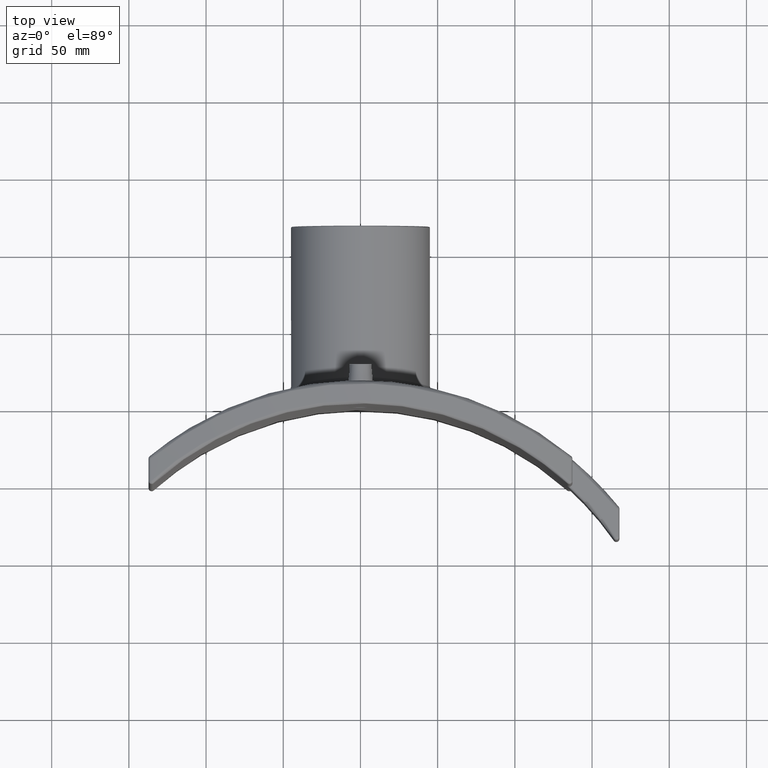
[diagram: clean part render]
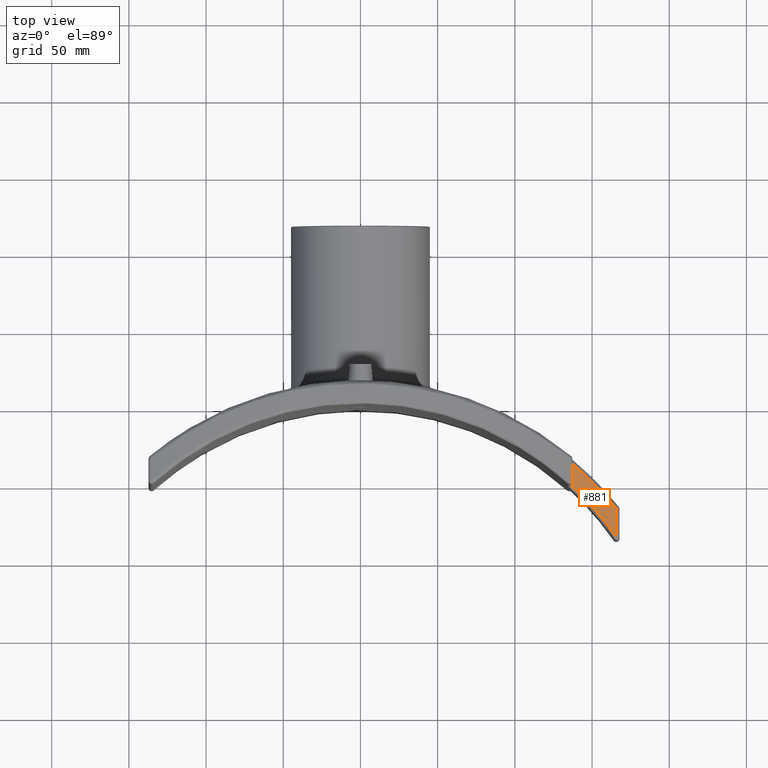
[diagram: same view with one face highlighted and labeled with its STEP entity id]
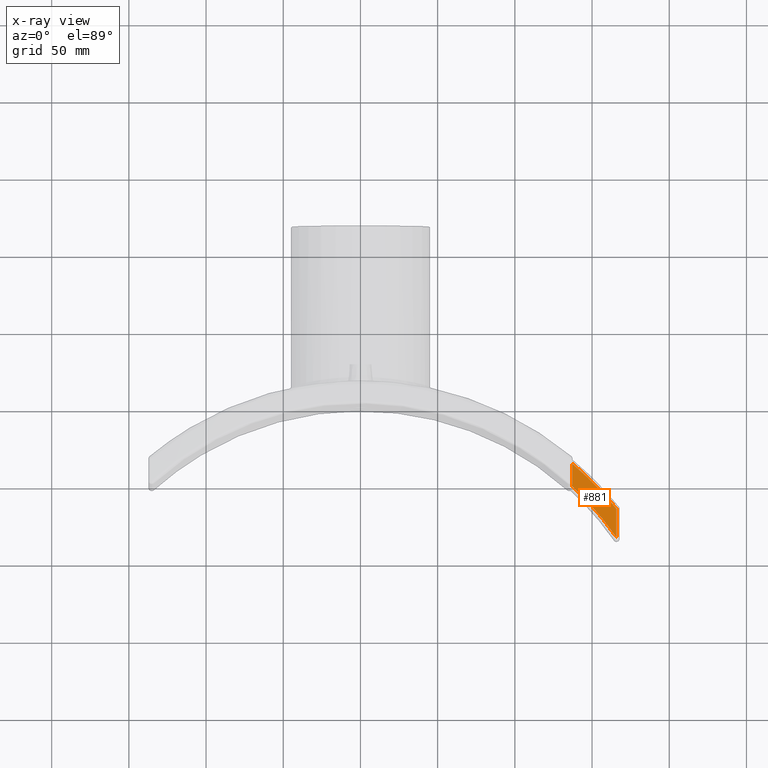
[diagram: x-ray of the same camera — body ghosted, the highlighted face saturated]
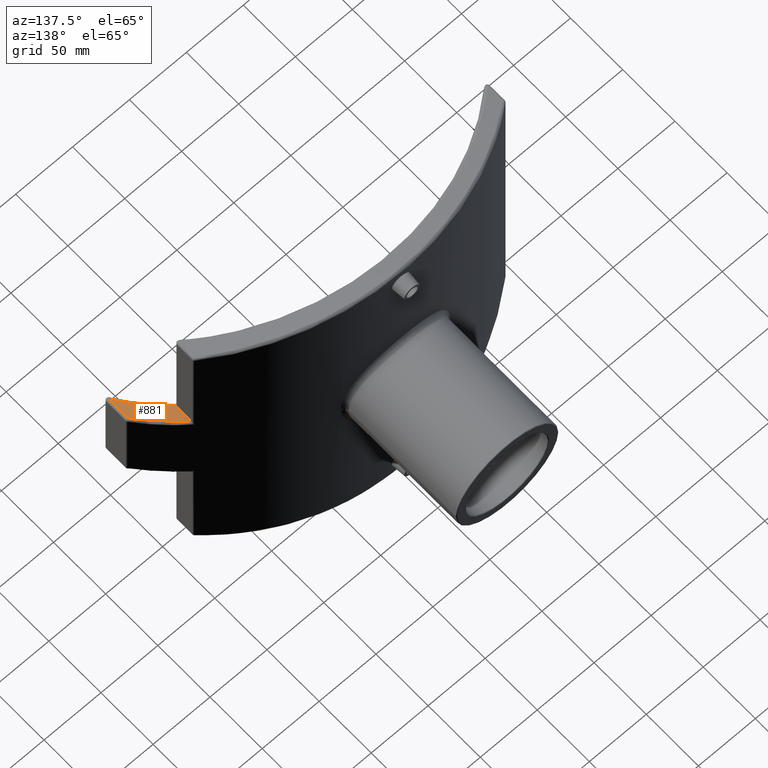
[diagram: same view with one face highlighted and labeled with its STEP entity id]
A machine part, top view. The second image highlights one B-rep face of the part: STEP entity #881.
The next image is the same camera in x-ray: the body ghosted, the highlighted face saturated — about 0% of this face is hidden behind the body in this view.
A second angle (auxiliary view) of the same face is appended — the face is thin or edge-on in the first view.
In plain terms, the highlighted planar face has unit normal (0, 0, 1).
Its self-contained STEP definition (entity closure, byte-faithful):
#38=LINE('',#1952,#68);
#57=LINE('',#2213,#87);
#68=VECTOR('',#1197,18.3160193565503);
#87=VECTOR('',#1268,12.8466166978308);
#155=PLANE('',#1007);
#244=FACE_OUTER_BOUND('',#333,.T.);
#333=EDGE_LOOP('',(#805,#806,#807,#808,#809));
#389=CIRCLE('',#978,2.);
#391=CIRCLE('',#981,202.);
#394=CIRCLE('',#991,213.);
#444=VERTEX_POINT('',#1855);
#454=VERTEX_POINT('',#1943);
#459=VERTEX_POINT('',#2042);
#461=VERTEX_POINT('',#2046);
#465=VERTEX_POINT('',#2104);
#541=EDGE_CURVE('',#444,#454,#38,.T.);
#551=EDGE_CURVE('',#461,#459,#389,.T.);
#553=EDGE_CURVE('',#454,#461,#391,.T.);
#567=EDGE_CURVE('',#465,#444,#394,.T.);
#580=EDGE_CURVE('',#459,#465,#57,.T.);
#805=ORIENTED_EDGE('',*,*,#567,.F.);
#806=ORIENTED_EDGE('',*,*,#580,.F.);
#807=ORIENTED_EDGE('',*,*,#551,.F.);
#808=ORIENTED_EDGE('',*,*,#553,.F.);
#809=ORIENTED_EDGE('',*,*,#541,.F.);
#881=ADVANCED_FACE('',(#244),#155,.T.);
#978=AXIS2_PLACEMENT_3D('',#2059,#1211,#1212);
#981=AXIS2_PLACEMENT_3D('',#2062,#1217,#1218);
#991=AXIS2_PLACEMENT_3D('',#2105,#1246,#1247);
#1007=AXIS2_PLACEMENT_3D('',#2223,#1286,#1287);
#1197=DIRECTION('',(0.,-1.,0.));
#1211=DIRECTION('center_axis',(0.,0.,1.));
#1212=DIRECTION('ref_axis',(0.406476041455387,-0.913661440426791,0.));
#1217=DIRECTION('center_axis',(0.,0.,1.));
#1218=DIRECTION('ref_axis',(0.767961388285212,0.64049614058404,0.));
#1246=DIRECTION('center_axis',(0.,0.,-1.));
#1247=DIRECTION('ref_axis',(0.712959302615589,0.701205414136181,0.));
#1268=DIRECTION('',(0.,1.,0.));
#1286=DIRECTION('center_axis',(0.,0.,1.));
#1287=DIRECTION('ref_axis',(1.,0.,0.));
#1855=CARTESIAN_POINT('',(165.75,133.775698465753,37.5));
#1943=CARTESIAN_POINT('',(165.75,115.459679109202,37.5));
#1952=CARTESIAN_POINT('',(165.75,123.346726862885,37.5));
#2042=CARTESIAN_POINT('',(137.25,150.038120156179,37.5));
#2046=CARTESIAN_POINT('',(136.728878486804,148.691673565606,37.5));
#2059=CARTESIAN_POINT('Origin',(135.25,150.038120156179,37.5));
#2062=CARTESIAN_POINT('Origin',(0.,0.,37.5));
#2104=CARTESIAN_POINT('',(137.25,162.88473685401,37.5));
#2105=CARTESIAN_POINT('Origin',(0.,0.,37.5));
#2213=CARTESIAN_POINT('',(137.25,141.631632000128,37.5));
#2223=CARTESIAN_POINT('Origin',(153.621706478283,137.790113556608,37.5));